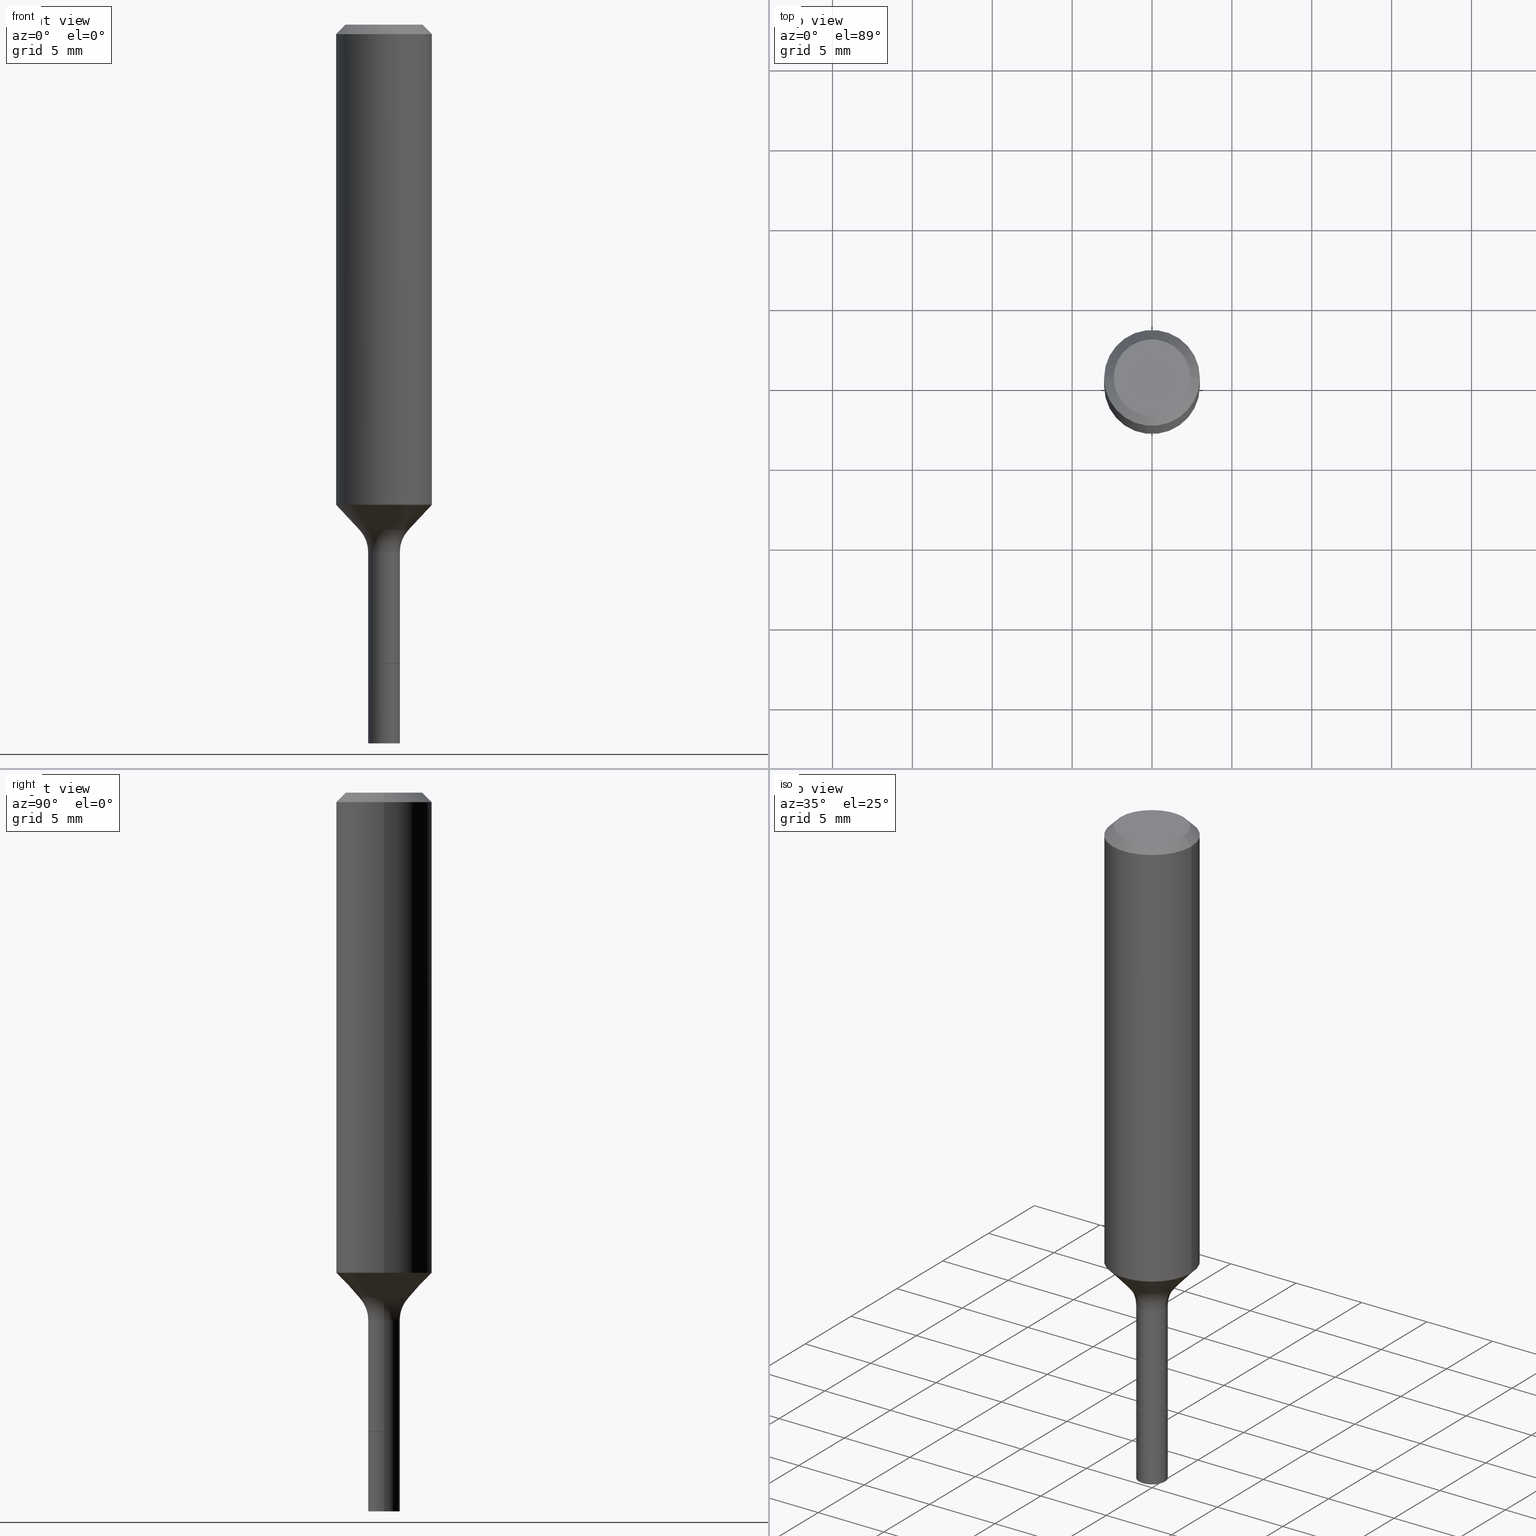
[diagram: canonical four-view strip — front | top / right | iso, engineering-drawing reading convention]
A machine part, canonical four-view strip (front | top / right | iso — engineering-drawing reading convention). The complete STEP part file that produces these views, byte-faithful:
ISO-10303-21;
HEADER;
FILE_DESCRIPTION (( 'STEP AP203' ),
    '1' );
FILE_NAME ('58481.STEP',
    '2025-04-01T15:23:17',
    ( '' ),
    ( '' ),
    'SwSTEP 2.0',
    'SolidWorks 2024',
    '' );
FILE_SCHEMA (( 'CONFIG_CONTROL_DESIGN' ));
ENDSEC;

DATA;
#1 = PERSON ( 'UNSPECIFIED', 'UNSPECIFIED', 'UNSPECIFIED', ('UNSPECIFIED'), ('UNSPECIFIED'), ('UNSPECIFIED') ) ;
#2 = DIRECTION ( 'NONE',  ( -2.445468806185136597E-29, 3.491481338843145583E-15, 1.000000000000000000 ) ) ;
#3 = ADVANCED_FACE ( 'NONE', ( #93 ), #16, .T. ) ;
#4 = AXIS2_PLACEMENT_3D ( 'NONE', #369, #331, #486 ) ;
#5 = CARTESIAN_POINT ( 'NONE',  ( 0.000000000000000000, 0.000000000000000000, 0.000000000000000000 ) ) ;
#6 = ORIENTED_EDGE ( 'NONE', *, *, #101, .T. ) ;
#7 = DIRECTION ( 'NONE',  ( -2.445468806185136597E-29, 3.491481338843145583E-15, 1.000000000000000000 ) ) ;
#8 = FACE_OUTER_BOUND ( 'NONE', #348, .T. ) ;
#9 = DIRECTION ( 'NONE',  ( -2.445468806185136597E-29, 3.491481338843145583E-15, 1.000000000000000000 ) ) ;
#10 = DIRECTION ( 'NONE',  ( 0.6819983600624995868, -2.208861293262486847E-15, 0.7313537016191693496 ) ) ;
#11 = CARTESIAN_POINT ( 'NONE',  ( 0.000000000000000000, 0.000000000000000000, 0.000000000000000000 ) ) ;
#12 = ADVANCED_FACE ( 'NONE', ( #417 ), #59, .T. ) ;
#13 = AXIS2_PLACEMENT_3D ( 'NONE', #129, #50, #367 ) ;
#14 = DIRECTION ( 'NONE',  ( 1.000000000000000000, -6.982962677686272233E-15, 0.000000000000000000 ) ) ;
#15 = CARTESIAN_POINT ( 'NONE',  ( 3.852102463502827373E-29, -5.499781404945724146E-15, -1.575200000000000156 ) ) ;
#16 = CONICAL_SURFACE ( 'NONE', #383, 0.03854999999999998705, 0.7853981633975591903 ) ;
#17 = DIRECTION ( 'NONE',  ( 1.000000000000000000, -6.982962677686272233E-15, 0.000000000000000000 ) ) ;
#18 = DIRECTION ( 'NONE',  ( 1.000000000000000000, -6.982962677686266711E-15, 0.000000000000000000 ) ) ;
#19 = CARTESIAN_POINT ( 'NONE',  ( -0.1180999999999999966, 7.422191030112725094E-16, -0.02362000000000013741 ) ) ;
#20 = DIRECTION ( 'NONE',  ( 1.000000000000000000, 0.000000000000000000, 0.000000000000000000 ) ) ;
#21 = AXIS2_PLACEMENT_3D ( 'NONE', #391, #307, #108 ) ;
#22 = CARTESIAN_POINT ( 'NONE',  ( 3.178375807398822119E-29, -4.537878296094436237E-15, -1.299700000000000077 ) ) ;
#23 = CYLINDRICAL_SURFACE ( 'NONE', #470, 0.03904999999999998056 ) ;
#24 = SHAPE_DEFINITION_REPRESENTATION ( #313, #414 ) ;
#25 = AXIS2_PLACEMENT_3D ( 'NONE', #82, #7, #184 ) ;
#26 = DIRECTION ( 'NONE',  ( -2.445468806185136597E-29, 3.491481338843145583E-15, 1.000000000000000000 ) ) ;
#27 = EDGE_CURVE ( 'NONE', #404, #362, #128, .T. ) ;
#28 = APPROVAL_DATE_TIME ( #233, #94 ) ;
#29 = ORIENTED_EDGE ( 'NONE', *, *, #141, .F. ) ;
#30 = DIRECTION ( 'NONE',  ( -6.982962677686266711E-15, -1.000000000000000000, 3.491481338843145583E-15 ) ) ;
#31 = ORIENTED_EDGE ( 'NONE', *, *, #60, .F. ) ;
#32 = ORIENTED_EDGE ( 'NONE', *, *, #215, .T. ) ;
#33 = EDGE_CURVE ( 'NONE', #362, #44, #45, .T. ) ;
#34 = AXIS2_PLACEMENT_3D ( 'NONE', #11, #462, #20 ) ;
#35 = DIRECTION ( 'NONE',  ( 7.105427357601001859E-15, 1.000000000000000000, -3.491481338843145583E-15 ) ) ;
#36 = CIRCLE ( 'NONE', #337, 0.1181000000000001493 ) ;
#37 = EDGE_LOOP ( 'NONE', ( #415, #317, #332, #206 ) ) ;
#38 = DIRECTION ( 'NONE',  ( -2.445468806185136597E-29, 3.491481338843145583E-15, 1.000000000000000000 ) ) ;
#39 = CONICAL_SURFACE ( 'NONE', #261, 0.1180999999999999966, 0.7853981633974463916 ) ;
#40 = VERTEX_POINT ( 'NONE', #482 ) ;
#41 = CARTESIAN_POINT ( 'NONE',  ( 0.1180999999999999966, -8.926936027602933910E-16, -0.02362000000000013741 ) ) ;
#42 = CARTESIAN_POINT ( 'NONE',  ( 3.772893820736570314E-46, -5.386692455541008845E-32, -1.542810037565835988E-17 ) ) ;
#43 = ADVANCED_FACE ( 'NONE', ( #382 ), #130, .T. ) ;
#44 = VERTEX_POINT ( 'NONE', #330 ) ;
#45 = LINE ( 'NONE', #323, #115 ) ;
#46 = DIRECTION ( 'NONE',  ( 2.438088387897960049E-29, -3.491481338843145188E-15, -1.000000000000000000 ) ) ;
#47 = ORIENTED_EDGE ( 'NONE', *, *, #237, .F. ) ;
#48 = AXIS2_PLACEMENT_3D ( 'NONE', #42, #255, #419 ) ;
#49 = CARTESIAN_POINT ( 'NONE',  ( -0.03905000000000011240, -5.566225378507452853E-15, -1.771700000000000053 ) ) ;
#50 = DIRECTION ( 'NONE',  ( 2.445468806185136597E-29, -3.491481338843145583E-15, -1.000000000000000000 ) ) ;
#51 = AXIS2_PLACEMENT_3D ( 'NONE', #152, #471, #273 ) ;
#52 = EDGE_CURVE ( 'NONE', #136, #40, #183, .T. ) ;
#53 = CALENDAR_DATE ( 2025, 1, 4 ) ;
#54 = DIRECTION ( 'NONE',  ( 1.000000000000000000, -6.982962677686267499E-15, 4.876176775795936353E-29 ) ) ;
#55 = AXIS2_PLACEMENT_3D ( 'NONE', #5, #446, #209 ) ;
#56 = APPLICATION_PROTOCOL_DEFINITION ( 'international standard', 'config_control_design', 1994, #345 ) ;
#57 = DIRECTION ( 'NONE',  ( 1.000000000000000000, -6.982962677686264344E-15, 0.000000000000000000 ) ) ;
#58 = DIRECTION ( 'NONE',  ( 1.000000000000000000, -6.982962677686258033E-15, 0.000000000000000000 ) ) ;
#59 = CONICAL_SURFACE ( 'NONE', #13, 0.1180999999999999966, 0.7853981633974463916 ) ;
#60 = EDGE_CURVE ( 'NONE', #362, #404, #493, .T. ) ;
#61 = DIRECTION ( 'NONE',  ( -2.445468806185136597E-29, 3.491481338843145583E-15, 1.000000000000000000 ) ) ;
#62 = DIRECTION ( 'NONE',  ( -0.7071067811865461294, 2.468850131082242072E-15, -0.7071067811865489050 ) ) ;
#63 = AXIS2_PLACEMENT_3D ( 'NONE', #223, #137, #14 ) ;
#64 = COORDINATED_UNIVERSAL_TIME_OFFSET ( 5, 0, .BEHIND. ) ;
#65 = TOROIDAL_SURFACE ( 'NONE', #433, 0.1190499999999999614, 0.07999999999999994615 ) ;
#66 = DIRECTION ( 'NONE',  ( -2.445468806185136597E-29, 3.491481338843145583E-15, 1.000000000000000000 ) ) ;
#67 = PERSON_AND_ORGANIZATION_ROLE ( 'design_supplier' ) ;
#68 = ADVANCED_FACE ( 'NONE', ( #515 ), #39, .T. ) ;
#69 = CARTESIAN_POINT ( 'NONE',  ( 0.000000000000000000, 0.000000000000000000, 0.000000000000000000 ) ) ;
#70 = CARTESIAN_POINT ( 'NONE',  ( 0.1190499999999999614, -5.369200002872985424E-15, -1.299700000000000077 ) ) ;
#71 = SECURITY_CLASSIFICATION_LEVEL ( 'unclassified' ) ;
#72 = ORIENTED_EDGE ( 'NONE', *, *, #182, .F. ) ;
#73 = AXIS2_PLACEMENT_3D ( 'NONE', #131, #38, #90 ) ;
#74 = VERTEX_POINT ( 'NONE', #49 ) ;
#75 = CC_DESIGN_PERSON_AND_ORGANIZATION_ASSIGNMENT ( #397, #67, ( #293 ) ) ;
#76 = EDGE_CURVE ( 'NONE', #514, #411, #426, .T. ) ;
#77 = EDGE_LOOP ( 'NONE', ( #358, #401, #32, #355 ) ) ;
#78 = CARTESIAN_POINT ( 'NONE',  ( 0.1180999999999999966, -9.071566814582237199E-16, -0.02362000000000013741 ) ) ;
#79 = ORIENTED_EDGE ( 'NONE', *, *, #394, .F. ) ;
#80 = DIRECTION ( 'NONE',  ( -1.000000000000000000, 7.105427357601005014E-15, 0.000000000000000000 ) ) ;
#81 = ORIENTED_EDGE ( 'NONE', *, *, #182, .T. ) ;
#82 = CARTESIAN_POINT ( 'NONE',  ( 3.044951350166641227E-29, -4.347383532312049754E-15, -1.245140131195000333 ) ) ;
#83 = PLANE ( 'NONE',  #213 ) ;
#84 = EDGE_CURVE ( 'NONE', #44, #247, #246, .T. ) ;
#85 = EDGE_LOOP ( 'NONE', ( #29, #218, #116, #175 ) ) ;
#86 = CYLINDRICAL_SURFACE ( 'NONE', #395, 0.03905000000000004995 ) ;
#87 = DIRECTION ( 'NONE',  ( -2.438088387897960049E-29, 3.491481338843145188E-15, 1.000000000000000000 ) ) ;
#88 = ORIENTED_EDGE ( 'NONE', *, *, #423, .F. ) ;
#89 = DIRECTION ( 'NONE',  ( -2.445468806185136597E-29, 3.491481338843145583E-15, 1.000000000000000000 ) ) ;
#90 = DIRECTION ( 'NONE',  ( 1.000000000000000000, -6.982962677686255667E-15, 0.000000000000000000 ) ) ;
#91 = APPROVAL_PERSON_ORGANIZATION ( #427, #466, #387 ) ;
#92 = CIRCLE ( 'NONE', #389, 0.03905000000000011240 ) ;
#93 = FACE_OUTER_BOUND ( 'NONE', #453, .T. ) ;
#94 = APPROVAL ( #107, 'UNSPECIFIED' ) ;
#95 = MECHANICAL_CONTEXT ( 'NONE', #211, 'mechanical' ) ;
#96 = DIRECTION ( 'NONE',  ( 1.000000000000000000, -6.982962677686255667E-15, 0.000000000000000000 ) ) ;
#97 = CARTESIAN_POINT ( 'NONE',  ( 0.03904999999999996668, -4.810562988658084561E-15, -1.299700000000000077 ) ) ;
#98 = CARTESIAN_POINT ( 'NONE',  ( 0.03905000000000011240, -6.458542180592050983E-15, -1.771700000000000053 ) ) ;
#99 = LENGTH_MEASURE_WITH_UNIT ( LENGTH_MEASURE( 0.02539999999999999897 ), #384 );
#100 = CARTESIAN_POINT ( 'NONE',  ( 2.894007928645242123E-29, -4.131876330531287042E-15, -1.183416415423353740 ) ) ;
#101 = EDGE_CURVE ( 'NONE', #132, #517, #248, .T. ) ;
#102 = DIRECTION ( 'NONE',  ( 1.000000000000000000, -6.982962677686269077E-15, 0.000000000000000000 ) ) ;
#103 = CARTESIAN_POINT ( 'NONE',  ( 3.178375807398822119E-29, -4.537878296094436237E-15, -1.299700000000000077 ) ) ;
#104 = APPLICATION_PROTOCOL_DEFINITION ( 'international standard', 'config_control_design', 1994, #211 ) ;
#105 = DIRECTION ( 'NONE',  ( -2.445468806185136597E-29, 3.491481338843145583E-15, 1.000000000000000000 ) ) ;
#106 = CLOSED_SHELL ( 'NONE', ( #473, #12, #43, #117, #295, #319, #289, #326, #176, #344, #68, #487, #437, #3 ) ) ;
#107 = APPROVAL_STATUS ( 'not_yet_approved' ) ;
#108 = DIRECTION ( 'NONE',  ( 1.000000000000000000, -6.982962677686265133E-15, 4.883557194083112340E-29 ) ) ;
#109 = ORGANIZATION ( 'UNSPECIFIED', 'UNSPECIFIED', '' ) ;
#110 = CALENDAR_DATE ( 2025, 1, 4 ) ;
#111 = ORIENTED_EDGE ( 'NONE', *, *, #84, .F. ) ;
#112 = AXIS2_PLACEMENT_3D ( 'NONE', #186, #297, #148 ) ;
#113 = FACE_OUTER_BOUND ( 'NONE', #173, .T. ) ;
#114 = EDGE_CURVE ( 'NONE', #411, #514, #163, .T. ) ;
#115 = VECTOR ( 'NONE', #207, 39.37007874015748854 ) ;
#116 = ORIENTED_EDGE ( 'NONE', *, *, #423, .T. ) ;
#117 = ADVANCED_FACE ( 'NONE', ( #458 ), #283, .T. ) ;
#118 = CIRCLE ( 'NONE', #145, 0.07999999999999993228 ) ;
#119 = ORIENTED_EDGE ( 'NONE', *, *, #153, .F. ) ;
#120 = EDGE_LOOP ( 'NONE', ( #123, #315 ) ) ;
#121 = DIRECTION ( 'NONE',  ( -2.445468806185136597E-29, 3.491481338843145583E-15, 1.000000000000000000 ) ) ;
#122 = VECTOR ( 'NONE', #158, 39.37007874015748143 ) ;
#123 = ORIENTED_EDGE ( 'NONE', *, *, #201, .F. ) ;
#124 = EDGE_CURVE ( 'NONE', #204, #294, #198, .T. ) ;
#125 = DIRECTION ( 'NONE',  ( -1.000000000000000000, 6.982962677686266711E-15, 0.000000000000000000 ) ) ;
#126 = ORIENTED_EDGE ( 'NONE', *, *, #338, .T. ) ;
#127 = FACE_OUTER_BOUND ( 'NONE', #240, .T. ) ;
#128 = CIRCLE ( 'NONE', #448, 0.06054170387046642343 ) ;
#129 = CARTESIAN_POINT ( 'NONE',  ( 5.776197320209326656E-31, -8.246878922347558061E-17, -0.02362000000000013741 ) ) ;
#130 = CYLINDRICAL_SURFACE ( 'NONE', #55, 0.1181000000000000660 ) ;
#131 = CARTESIAN_POINT ( 'NONE',  ( 3.853325197905920174E-29, -5.501527145615144861E-15, -1.575700000000000101 ) ) ;
#132 = VERTEX_POINT ( 'NONE', #98 ) ;
#133 = LOCAL_TIME ( 11, 23, 17.00000000000000000, #270 ) ;
#134 = PRODUCT_DEFINITION ( 'UNKNOWN', '', #293, #378 ) ;
#135 = CIRCLE ( 'NONE', #205, 0.03905000000000000138 ) ;
#136 = VERTEX_POINT ( 'NONE', #449 ) ;
#137 = DIRECTION ( 'NONE',  ( -2.445468806185136597E-29, 3.491481338843145583E-15, 1.000000000000000000 ) ) ;
#138 = DATE_AND_TIME ( #180, #386 ) ;
#139 = PLANE ( 'NONE',  #112 ) ;
#140 = VECTOR ( 'NONE', #496, 39.37007874015748143 ) ;
#141 = EDGE_CURVE ( 'NONE', #44, #514, #259, .T. ) ;
#142 = PERSON_AND_ORGANIZATION_ROLE ( 'design_owner' ) ;
#143 = DIRECTION ( 'NONE',  ( 1.000000000000000000, -6.982962677686266711E-15, 4.876176775795936353E-29 ) ) ;
#144 = DIRECTION ( 'NONE',  ( -2.445468806185136597E-29, 3.491481338843145583E-15, 1.000000000000000000 ) ) ;
#145 = AXIS2_PLACEMENT_3D ( 'NONE', #236, #35, #80 ) ;
#146 = CARTESIAN_POINT ( 'NONE',  ( 0.03904999999999998056, -2.726846925636486196E-16, 1.904147030948312151E-30 ) ) ;
#147 = APPROVAL_ROLE ( '' ) ;
#148 = DIRECTION ( 'NONE',  ( -1.000000000000000000, 6.982962677686265922E-15, -4.876176775795935793E-29 ) ) ;
#149 = CIRCLE ( 'NONE', #491, 0.03904999999999996668 ) ;
#150 = CC_DESIGN_PERSON_AND_ORGANIZATION_ASSIGNMENT ( #356, #507, ( #452 ) ) ;
#151 = LINE ( 'NONE', #504, #140 ) ;
#152 = CARTESIAN_POINT ( 'NONE',  ( 3.853325197905920174E-29, -5.501527145615144861E-15, -1.575700000000000101 ) ) ;
#153 = EDGE_CURVE ( 'NONE', #40, #411, #409, .T. ) ;
#154 = PERSON_AND_ORGANIZATION_ROLE ( 'creator' ) ;
#155 = CARTESIAN_POINT ( 'NONE',  ( -0.03905000000000000138, -4.741362912205761257E-15, -1.575200000000000156 ) ) ;
#156 = DATE_AND_TIME ( #390, #431 ) ;
#157 = AXIS2_PLACEMENT_3D ( 'NONE', #288, #89, #363 ) ;
#158 = DIRECTION ( 'NONE',  ( -0.7071067811866259545, 7.493145998870638150E-15, 0.7071067811864690800 ) ) ;
#159 = ORIENTED_EDGE ( 'NONE', *, *, #201, .T. ) ;
#160 = ADVANCED_FACE ( 'NONE', ( #127 ), #86, .T. ) ;
#161 = LOCAL_TIME ( 11, 23, 17.00000000000000000, #467 ) ;
#162 = EDGE_LOOP ( 'NONE', ( #351, #126 ) ) ;
#163 = CIRCLE ( 'NONE', #322, 0.1180999999999999966 ) ;
#164 = VECTOR ( 'NONE', #499, 39.37007874015748143 ) ;
#165 = ORIENTED_EDGE ( 'NONE', *, *, #281, .F. ) ;
#166 = EDGE_CURVE ( 'NONE', #136, #514, #396, .T. ) ;
#167 = VERTEX_POINT ( 'NONE', #347 ) ;
#168 = PRODUCT_RELATED_PRODUCT_CATEGORY ( 'detail', '', ( #436 ) ) ;
#169 = DIRECTION ( 'NONE',  ( -2.445468806185136877E-29, 3.491481338843145188E-15, 1.000000000000000000 ) ) ;
#170 = AXIS2_PLACEMENT_3D ( 'NONE', #435, #505, #189 ) ;
#171 = ORIENTED_EDGE ( 'NONE', *, *, #359, .T. ) ;
#172 = CARTESIAN_POINT ( 'NONE',  ( 5.776197320209326656E-31, -8.246878922347558061E-17, -0.02362000000000013741 ) ) ;
#173 = EDGE_LOOP ( 'NONE', ( #47, #360, #454, #447 ) ) ;
#174 = CARTESIAN_POINT ( 'NONE',  ( 4.332637083918206427E-29, -6.185857488028401081E-15, -1.771700000000000053 ) ) ;
#175 = ORIENTED_EDGE ( 'NONE', *, *, #76, .F. ) ;
#176 = ADVANCED_FACE ( 'NONE', ( #193 ), #353, .T. ) ;
#177 = CARTESIAN_POINT ( 'NONE',  ( 3.044951350166641227E-29, -4.347383532312049754E-15, -1.245140131195000333 ) ) ;
#178 = CC_DESIGN_APPROVAL ( #94, ( #293 ) ) ;
#179 = VECTOR ( 'NONE', #349, 39.37007874015748143 ) ;
#180 = CALENDAR_DATE ( 2025, 1, 4 ) ;
#181 = CYLINDRICAL_SURFACE ( 'NONE', #361, 0.1181000000000000660 ) ;
#182 = EDGE_CURVE ( 'NONE', #325, #517, #234, .T. ) ;
#183 = CIRCLE ( 'NONE', #157, 0.09447999999999998066 ) ;
#184 = DIRECTION ( 'NONE',  ( 1.000000000000000000, -6.982962677686272233E-15, 0.000000000000000000 ) ) ;
#185 =( NAMED_UNIT ( * ) SI_UNIT ( $, .STERADIAN. ) SOLID_ANGLE_UNIT ( ) );
#186 = CARTESIAN_POINT ( 'NONE',  ( 3.853325197905920174E-29, -5.501527145615144861E-15, -1.575700000000000101 ) ) ;
#187 = DIRECTION ( 'NONE',  ( -2.445468806185136597E-29, 3.491481338843145583E-15, 1.000000000000000000 ) ) ;
#188 = CIRCLE ( 'NONE', #336, 0.03854999999999998705 ) ;
#189 = DIRECTION ( 'NONE',  ( 1.000000000000000000, -6.982962677686272233E-15, 0.000000000000000000 ) ) ;
#190 = AXIS2_PLACEMENT_3D ( 'NONE', #195, #342, #258 ) ;
#191 = VERTEX_POINT ( 'NONE', #155 ) ;
#192 = CARTESIAN_POINT ( 'NONE',  ( 0.1181000000000001493, -4.956564222766036883E-15, -1.183416415423353740 ) ) ;
#193 = FACE_OUTER_BOUND ( 'NONE', #513, .T. ) ;
#194 = CALENDAR_DATE ( 2025, 1, 4 ) ;
#195 = CARTESIAN_POINT ( 'NONE',  ( 7.545787641473140628E-46, -1.077338491108201769E-31, -3.085620075131671975E-17 ) ) ;
#196 = CC_DESIGN_PERSON_AND_ORGANIZATION_ASSIGNMENT ( #199, #154, ( #293 ) ) ;
#197 = CC_DESIGN_DATE_AND_TIME_ASSIGNMENT ( #354, #306, ( #134 ) ) ;
#198 = CIRCLE ( 'NONE', #298, 0.03904999999999996668 ) ;
#199 = PERSON_AND_ORGANIZATION ( #1, #109 ) ;
#200 = FACE_OUTER_BOUND ( 'NONE', #37, .T. ) ;
#201 = EDGE_CURVE ( 'NONE', #202, #408, #503, .T. ) ;
#202 = VERTEX_POINT ( 'NONE', #275 ) ;
#203 = CC_DESIGN_SECURITY_CLASSIFICATION ( #452, ( #293 ) ) ;
#204 = VERTEX_POINT ( 'NONE', #429 ) ;
#205 = AXIS2_PLACEMENT_3D ( 'NONE', #15, #61, #18 ) ;
#206 = ORIENTED_EDGE ( 'NONE', *, *, #101, .F. ) ;
#207 = DIRECTION ( 'NONE',  ( -0.6819983600624995868, 7.399397606724291309E-15, 0.7313537016191693496 ) ) ;
#208 = ORIENTED_EDGE ( 'NONE', *, *, #508, .T. ) ;
#209 = DIRECTION ( 'NONE',  ( 1.000000000000000000, -6.982962677686266711E-15, 4.876176775795936353E-29 ) ) ;
#210 = ORIENTED_EDGE ( 'NONE', *, *, #249, .F. ) ;
#211 = APPLICATION_CONTEXT ( 'configuration controlled 3d designs of mechanical parts and assemblies' ) ;
#212 = DIRECTION ( 'NONE',  ( -1.000000000000000000, 6.982962677686265922E-15, -4.876176775795935793E-29 ) ) ;
#213 = AXIS2_PLACEMENT_3D ( 'NONE', #174, #46, #212 ) ;
#214 = ORIENTED_EDGE ( 'NONE', *, *, #456, .F. ) ;
#215 = EDGE_CURVE ( 'NONE', #404, #294, #480, .T. ) ;
#216 = CARTESIAN_POINT ( 'NONE',  ( 3.044951350166641227E-29, -4.347383532312049754E-15, -1.245140131195000333 ) ) ;
#217 = CARTESIAN_POINT ( 'NONE',  ( 0.1181000000000000660, -8.246878922347485584E-16, 5.758764772215003944E-30 ) ) ;
#218 = ORIENTED_EDGE ( 'NONE', *, *, #84, .T. ) ;
#219 = LINE ( 'NONE', #376, #278 ) ;
#220 = DIRECTION ( 'NONE',  ( -2.445468806185136597E-29, 3.491481338843145583E-15, 1.000000000000000000 ) ) ;
#221 = EDGE_CURVE ( 'NONE', #408, #191, #474, .T. ) ;
#222 = CARTESIAN_POINT ( 'NONE',  ( 0.03854999999999998705, -5.770720356839950178E-15, -1.575700000000000101 ) ) ;
#223 = CARTESIAN_POINT ( 'NONE',  ( 4.332637083918206427E-29, -6.185857488028401081E-15, -1.771700000000000053 ) ) ;
#224 = CARTESIAN_POINT ( 'NONE',  ( 3.853325197905920174E-29, -5.501527145615144861E-15, -1.575700000000000101 ) ) ;
#225 = VECTOR ( 'NONE', #299, 39.37007874015748143 ) ;
#226 = APPROVAL_STATUS ( 'not_yet_approved' ) ;
#227 = DIRECTION ( 'NONE',  ( 1.000000000000000000, -6.982962677686269077E-15, 0.000000000000000000 ) ) ;
#228 = CC_DESIGN_DATE_AND_TIME_ASSIGNMENT ( #232, #506, ( #452 ) ) ;
#229 = TOROIDAL_SURFACE ( 'NONE', #21, 0.1190499999999999614, 0.07999999999999994615 ) ;
#230 = ADVANCED_FACE ( 'NONE', ( #200 ), #357, .T. ) ;
#231 = CYLINDRICAL_SURFACE ( 'NONE', #318, 0.03904999999999998056 ) ;
#232 = DATE_AND_TIME ( #194, #133 ) ;
#233 = DATE_AND_TIME ( #110, #161 ) ;
#234 = CIRCLE ( 'NONE', #516, 0.03904999999999998750 ) ;
#235 = ORIENTED_EDGE ( 'NONE', *, *, #141, .T. ) ;
#236 = CARTESIAN_POINT ( 'NONE',  ( -0.1190499999999999614, -3.691977169172037043E-15, -1.299700000000000077 ) ) ;
#237 = EDGE_CURVE ( 'NONE', #191, #204, #151, .T. ) ;
#238 = EDGE_LOOP ( 'NONE', ( #321, #235, #287, #88 ) ) ;
#239 = UNCERTAINTY_MEASURE_WITH_UNIT (LENGTH_MEASURE( 1.000000000000000082E-05 ), #303, 'distance_accuracy_value', 'NONE');
#240 = EDGE_LOOP ( 'NONE', ( #210, #208, #6, #72 ) ) ;
#241 = ORIENTED_EDGE ( 'NONE', *, *, #407, .F. ) ;
#242 = EDGE_CURVE ( 'NONE', #294, #204, #149, .T. ) ;
#243 = PLANE ( 'NONE',  #370 ) ;
#244 = ORIENTED_EDGE ( 'NONE', *, *, #508, .F. ) ;
#245 = DIRECTION ( 'NONE',  ( -2.445468806185136597E-29, 3.491481338843145583E-15, 1.000000000000000000 ) ) ;
#246 = CIRCLE ( 'NONE', #312, 0.1181000000000001493 ) ;
#247 = VERTEX_POINT ( 'NONE', #192 ) ;
#248 = LINE ( 'NONE', #302, #225 ) ;
#249 = EDGE_CURVE ( 'NONE', #74, #325, #300, .T. ) ;
#250 = ORIENTED_EDGE ( 'NONE', *, *, #27, .T. ) ;
#251 = APPROVAL_PERSON_ORGANIZATION ( #350, #290, #147 ) ;
#252 = DIRECTION ( 'NONE',  ( 2.445468806185136597E-29, -3.491481338843145583E-15, -1.000000000000000000 ) ) ;
#253 = AXIS2_PLACEMENT_3D ( 'NONE', #224, #187, #227 ) ;
#254 = CARTESIAN_POINT ( 'NONE',  ( 3.853325197905920174E-29, -5.501527145615144861E-15, -1.575700000000000101 ) ) ;
#255 = DIRECTION ( 'NONE',  ( 2.438088387897960049E-29, -3.491481338843145188E-15, -1.000000000000000000 ) ) ;
#256 = VECTOR ( 'NONE', #368, 39.37007874015748143 ) ;
#257 = PERSON_AND_ORGANIZATION ( #1, #109 ) ;
#258 = DIRECTION ( 'NONE',  ( 1.000000000000000000, -6.982962677686267499E-15, 4.875432709231658792E-29 ) ) ;
#259 = LINE ( 'NONE', #424, #256 ) ;
#260 = FACE_OUTER_BOUND ( 'NONE', #371, .T. ) ;
#261 = AXIS2_PLACEMENT_3D ( 'NONE', #416, #252, #125 ) ;
#262 = MANIFOLD_SOLID_BREP ( 'Body-Move/Copy2[2]', #106 ) ;
#263 = PERSON_AND_ORGANIZATION ( #1, #109 ) ;
#264 = CARTESIAN_POINT ( 'NONE',  ( -0.06054170387046639568, -3.917208853355059168E-15, -1.245140131195000333 ) ) ;
#265 = CARTESIAN_POINT ( 'NONE',  ( 3.853325197905920174E-29, -5.501527145615144861E-15, -1.575700000000000101 ) ) ;
#266 = PERSON_AND_ORGANIZATION ( #1, #109 ) ;
#267 = ORIENTED_EDGE ( 'NONE', *, *, #114, .T. ) ;
#268 = CARTESIAN_POINT ( 'NONE',  ( 3.178375807398822119E-29, -4.537878296094436237E-15, -1.299700000000000077 ) ) ;
#269 =( GEOMETRIC_REPRESENTATION_CONTEXT ( 3 ) GLOBAL_UNCERTAINTY_ASSIGNED_CONTEXT ( ( #239 ) ) GLOBAL_UNIT_ASSIGNED_CONTEXT ( ( #303, #498, #185 ) ) REPRESENTATION_CONTEXT ( 'NONE', 'WORKASPACE' ) );
#270 = COORDINATED_UNIVERSAL_TIME_OFFSET ( 5, 0, .BEHIND. ) ;
#271 = VECTOR ( 'NONE', #428, 39.37007874015748143 ) ;
#272 = DIRECTION ( 'NONE',  ( -2.445468806185136597E-29, 3.491481338843145583E-15, 1.000000000000000000 ) ) ;
#273 = DIRECTION ( 'NONE',  ( 1.000000000000000000, -6.982962677686255667E-15, 0.000000000000000000 ) ) ;
#274 = EDGE_LOOP ( 'NONE', ( #335, #398, #267, #310 ) ) ;
#275 = CARTESIAN_POINT ( 'NONE',  ( 0.03854999999999998705, -5.770720356839950178E-15, -1.575700000000000101 ) ) ;
#276 = APPROVAL_STATUS ( 'not_yet_approved' ) ;
#277 = ORIENTED_EDGE ( 'NONE', *, *, #33, .F. ) ;
#278 = VECTOR ( 'NONE', #10, 39.37007874015748854 ) ;
#279 = ORIENTED_EDGE ( 'NONE', *, *, #377, .F. ) ;
#280 = CARTESIAN_POINT ( 'NONE',  ( 4.332637083918206427E-29, -6.185857488028401081E-15, -1.771700000000000053 ) ) ;
#281 = EDGE_CURVE ( 'NONE', #202, #167, #501, .T. ) ;
#282 = EDGE_LOOP ( 'NONE', ( #119, #285, #488, #490 ) ) ;
#283 = CONICAL_SURFACE ( 'NONE', #25, 0.06054170387046642343, 0.7504915783575633048 ) ;
#284 = CARTESIAN_POINT ( 'NONE',  ( 3.853325197905920174E-29, -5.501527145615144861E-15, -1.575700000000000101 ) ) ;
#285 = ORIENTED_EDGE ( 'NONE', *, *, #52, .F. ) ;
#286 = DIRECTION ( 'NONE',  ( 1.000000000000000000, -6.982962677686266711E-15, 0.000000000000000000 ) ) ;
#287 = ORIENTED_EDGE ( 'NONE', *, *, #114, .F. ) ;
#288 = CARTESIAN_POINT ( 'NONE',  ( 7.545787641473140628E-46, -1.077338491108201769E-31, -3.085620075131671975E-17 ) ) ;
#289 = ADVANCED_FACE ( 'NONE', ( #113 ), #23, .T. ) ;
#290 = APPROVAL ( #276, 'UNSPECIFIED' ) ;
#291 = ORIENTED_EDGE ( 'NONE', *, *, #215, .F. ) ;
#292 = ORIENTED_EDGE ( 'NONE', *, *, #281, .T. ) ;
#293 = PRODUCT_DEFINITION_FORMATION_WITH_SPECIFIED_SOURCE ( 'ANY', '', #436, .NOT_KNOWN. ) ;
#294 = VERTEX_POINT ( 'NONE', #97 ) ;
#295 = ADVANCED_FACE ( 'NONE', ( #385 ), #65, .F. ) ;
#296 = APPROVAL_DATE_TIME ( #138, #466 ) ;
#297 = DIRECTION ( 'NONE',  ( 2.438088387897960049E-29, -3.491481338843145188E-15, -1.000000000000000000 ) ) ;
#298 = AXIS2_PLACEMENT_3D ( 'NONE', #103, #245, #340 ) ;
#299 = DIRECTION ( 'NONE',  ( -2.445468806185136877E-29, 3.491481338843145188E-15, 1.000000000000000000 ) ) ;
#300 = LINE ( 'NONE', #463, #179 ) ;
#301 = CONICAL_SURFACE ( 'NONE', #73, 0.03854999999999998705, 0.7853981633975591903 ) ;
#302 = CARTESIAN_POINT ( 'NONE',  ( 0.03905000000000004995, -5.774211838178793974E-15, -1.575700000000000101 ) ) ;
#303 =( CONVERSION_BASED_UNIT ( 'INCH', #99 ) LENGTH_UNIT ( ) NAMED_UNIT ( #309 ) );
#304 = DIRECTION ( 'NONE',  ( 1.000000000000000000, -6.982962677686258033E-15, 0.000000000000000000 ) ) ;
#305 = ADVANCED_FACE ( 'NONE', ( #260 ), #139, .F. ) ;
#306 = DATE_TIME_ROLE ( 'creation_date' ) ;
#307 = DIRECTION ( 'NONE',  ( -2.445468806185136597E-29, 3.491481338843145583E-15, 1.000000000000000000 ) ) ;
#308 = CARTESIAN_POINT ( 'NONE',  ( 0.000000000000000000, 0.000000000000000000, 0.000000000000000000 ) ) ;
#309 = DIMENSIONAL_EXPONENTS ( 1.000000000000000000, 0.000000000000000000, 0.000000000000000000, 0.000000000000000000, 0.000000000000000000, 0.000000000000000000, 0.000000000000000000 ) ;
#310 = ORIENTED_EDGE ( 'NONE', *, *, #166, .F. ) ;
#311 = CARTESIAN_POINT ( 'NONE',  ( -0.03854999999999998705, -5.224963693805516018E-15, -1.575700000000000101 ) ) ;
#312 = AXIS2_PLACEMENT_3D ( 'NONE', #497, #518, #406 ) ;
#313 = PRODUCT_DEFINITION_SHAPE ( 'NONE', 'NONE',  #134 ) ;
#314 = CARTESIAN_POINT ( 'NONE',  ( -0.03854999999999998705, -5.227612920979627219E-15, -1.575700000000000101 ) ) ;
#315 = ORIENTED_EDGE ( 'NONE', *, *, #502, .F. ) ;
#316 = LOCAL_TIME ( 11, 23, 17.00000000000000000, #379 ) ;
#317 = ORIENTED_EDGE ( 'NONE', *, *, #249, .T. ) ;
#318 = AXIS2_PLACEMENT_3D ( 'NONE', #69, #457, #54 ) ;
#319 = ADVANCED_FACE ( 'NONE', ( #380 ), #231, .T. ) ;
#320 = ORIENTED_EDGE ( 'NONE', *, *, #242, .F. ) ;
#321 = ORIENTED_EDGE ( 'NONE', *, *, #394, .T. ) ;
#322 = AXIS2_PLACEMENT_3D ( 'NONE', #172, #461, #286 ) ;
#323 = CARTESIAN_POINT ( 'NONE',  ( -0.06054170387046642343, -3.917208853355059168E-15, -1.245140131195000333 ) ) ;
#324 = FACE_OUTER_BOUND ( 'NONE', #441, .T. ) ;
#325 = VERTEX_POINT ( 'NONE', #432 ) ;
#326 = ADVANCED_FACE ( 'NONE', ( #465 ), #229, .F. ) ;
#327 = DIRECTION ( 'NONE',  ( 0.7071067811865461294, -7.319954787623251312E-15, -0.7071067811865489050 ) ) ;
#328 = CARTESIAN_POINT ( 'NONE',  ( 3.853325197905920174E-29, -5.501527145615144861E-15, -1.575700000000000101 ) ) ;
#329 = DIRECTION ( 'NONE',  ( 1.000000000000000000, -6.982962677686255667E-15, 0.000000000000000000 ) ) ;
#330 = CARTESIAN_POINT ( 'NONE',  ( -0.1181000000000001493, -3.292725359598607662E-15, -1.183416415423353740 ) ) ;
#331 = DIRECTION ( 'NONE',  ( -2.445468806185136597E-29, 3.491481338843145583E-15, 1.000000000000000000 ) ) ;
#332 = ORIENTED_EDGE ( 'NONE', *, *, #400, .F. ) ;
#333 = CLOSED_SHELL ( 'NONE', ( #230, #451, #160, #305 ) ) ;
#334 = FACE_OUTER_BOUND ( 'NONE', #162, .T. ) ;
#335 = ORIENTED_EDGE ( 'NONE', *, *, #338, .F. ) ;
#336 = AXIS2_PLACEMENT_3D ( 'NONE', #284, #220, #96 ) ;
#337 = AXIS2_PLACEMENT_3D ( 'NONE', #100, #425, #57 ) ;
#338 = EDGE_CURVE ( 'NONE', #40, #136, #405, .T. ) ;
#339 = DIRECTION ( 'NONE',  ( 1.000000000000000000, -6.982962677686265133E-15, 4.883557194083112340E-29 ) ) ;
#340 = DIRECTION ( 'NONE',  ( 1.000000000000000000, -6.982962677686273021E-15, 0.000000000000000000 ) ) ;
#341 = CARTESIAN_POINT ( 'NONE',  ( -0.1180999999999999966, -1.268021588944702067E-15, -0.02362000000000013741 ) ) ;
#342 = DIRECTION ( 'NONE',  ( -2.445468806185136597E-29, 3.491481338843145583E-15, 1.000000000000000000 ) ) ;
#343 = DIRECTION ( 'NONE',  ( 1.000000000000000000, -6.982962677686266711E-15, 0.000000000000000000 ) ) ;
#344 = ADVANCED_FACE ( 'NONE', ( #393 ), #181, .T. ) ;
#345 = APPLICATION_CONTEXT ( 'configuration controlled 3d designs of mechanical parts and assemblies' ) ;
#346 = DIRECTION ( 'NONE',  ( 1.000000000000000000, -6.982962677686273021E-15, 0.000000000000000000 ) ) ;
#347 = CARTESIAN_POINT ( 'NONE',  ( 0.03905000000000000138, -5.772466097509372470E-15, -1.575200000000000156 ) ) ;
#348 = EDGE_LOOP ( 'NONE', ( #159, #402, #478, #165 ) ) ;
#349 = DIRECTION ( 'NONE',  ( -2.445468806185136877E-29, 3.491481338843145188E-15, 1.000000000000000000 ) ) ;
#350 = PERSON_AND_ORGANIZATION ( #1, #109 ) ;
#351 = ORIENTED_EDGE ( 'NONE', *, *, #52, .T. ) ;
#352 = LINE ( 'NONE', #146, #271 ) ;
#353 = CONICAL_SURFACE ( 'NONE', #170, 0.06054170387046642343, 0.7504915783575633048 ) ;
#354 = DATE_AND_TIME ( #53, #316 ) ;
#355 = ORIENTED_EDGE ( 'NONE', *, *, #242, .T. ) ;
#356 = PERSON_AND_ORGANIZATION ( #1, #109 ) ;
#357 = CYLINDRICAL_SURFACE ( 'NONE', #375, 0.03905000000000004995 ) ;
#358 = ORIENTED_EDGE ( 'NONE', *, *, #418, .F. ) ;
#359 = EDGE_CURVE ( 'NONE', #167, #191, #135, .T. ) ;
#360 = ORIENTED_EDGE ( 'NONE', *, *, #456, .T. ) ;
#361 = AXIS2_PLACEMENT_3D ( 'NONE', #459, #422, #143 ) ;
#362 = VERTEX_POINT ( 'NONE', #264 ) ;
#363 = DIRECTION ( 'NONE',  ( 1.000000000000000000, -6.982962677686267499E-15, 4.875432709231658792E-29 ) ) ;
#364 = CC_DESIGN_PERSON_AND_ORGANIZATION_ASSIGNMENT ( #257, #421, ( #134 ) ) ;
#365 = ORIENTED_EDGE ( 'NONE', *, *, #60, .T. ) ;
#366 = AXIS2_PLACEMENT_3D ( 'NONE', #70, #30, #460 ) ;
#367 = DIRECTION ( 'NONE',  ( -1.000000000000000000, 6.982962677686266711E-15, 0.000000000000000000 ) ) ;
#368 = DIRECTION ( 'NONE',  ( -2.445468806185136877E-29, 3.491481338843145188E-15, 1.000000000000000000 ) ) ;
#369 = CARTESIAN_POINT ( 'NONE',  ( 3.852102463502827373E-29, -5.499781404945724146E-15, -1.575200000000000156 ) ) ;
#370 = AXIS2_PLACEMENT_3D ( 'NONE', #328, #87, #410 ) ;
#371 = EDGE_LOOP ( 'NONE', ( #479, #81 ) ) ;
#372 = CARTESIAN_POINT ( 'NONE',  ( 5.776197320209326656E-31, -8.246878922347558061E-17, -0.02362000000000013741 ) ) ;
#373 = LINE ( 'NONE', #217, #438 ) ;
#374 = ORIENTED_EDGE ( 'NONE', *, *, #33, .T. ) ;
#375 = AXIS2_PLACEMENT_3D ( 'NONE', #509, #105, #304 ) ;
#376 = CARTESIAN_POINT ( 'NONE',  ( 0.06054170387046642343, -4.770143990883050812E-15, -1.245140131195000333 ) ) ;
#377 = EDGE_CURVE ( 'NONE', #167, #294, #352, .T. ) ;
#378 = DESIGN_CONTEXT ( 'detailed design', #345, 'design' ) ;
#379 = COORDINATED_UNIVERSAL_TIME_OFFSET ( 5, 0, .BEHIND. ) ;
#380 = FACE_OUTER_BOUND ( 'NONE', #483, .T. ) ;
#381 = CC_DESIGN_PERSON_AND_ORGANIZATION_ASSIGNMENT ( #263, #142, ( #436 ) ) ;
#382 = FACE_OUTER_BOUND ( 'NONE', #238, .T. ) ;
#383 = AXIS2_PLACEMENT_3D ( 'NONE', #254, #9, #329 ) ;
#384 =( LENGTH_UNIT ( ) NAMED_UNIT ( * ) SI_UNIT ( $, .METRE. ) );
#385 = FACE_OUTER_BOUND ( 'NONE', #475, .T. ) ;
#386 = LOCAL_TIME ( 11, 23, 17.00000000000000000, #420 ) ;
#387 = APPROVAL_ROLE ( '' ) ;
#388 = CARTESIAN_POINT ( 'NONE',  ( 0.06054170387046639568, -4.770143990883050023E-15, -1.245140131195000333 ) ) ;
#389 = AXIS2_PLACEMENT_3D ( 'NONE', #280, #121, #442 ) ;
#390 = CALENDAR_DATE ( 2025, 1, 4 ) ;
#391 = CARTESIAN_POINT ( 'NONE',  ( 3.178375807398822119E-29, -4.537878296094436237E-15, -1.299700000000000077 ) ) ;
#392 = APPROVAL_ROLE ( '' ) ;
#393 = FACE_OUTER_BOUND ( 'NONE', #85, .T. ) ;
#394 = EDGE_CURVE ( 'NONE', #247, #44, #36, .T. ) ;
#395 = AXIS2_PLACEMENT_3D ( 'NONE', #412, #399, #58 ) ;
#396 = LINE ( 'NONE', #19, #443 ) ;
#397 = PERSON_AND_ORGANIZATION ( #1, #109 ) ;
#398 = ORIENTED_EDGE ( 'NONE', *, *, #153, .T. ) ;
#399 = DIRECTION ( 'NONE',  ( -2.445468806185136597E-29, 3.491481338843145583E-15, 1.000000000000000000 ) ) ;
#400 = EDGE_CURVE ( 'NONE', #517, #325, #477, .T. ) ;
#401 = ORIENTED_EDGE ( 'NONE', *, *, #27, .F. ) ;
#402 = ORIENTED_EDGE ( 'NONE', *, *, #221, .T. ) ;
#403 = CIRCLE ( 'NONE', #63, 0.03905000000000011240 ) ;
#404 = VERTEX_POINT ( 'NONE', #388 ) ;
#405 = CIRCLE ( 'NONE', #190, 0.09447999999999998066 ) ;
#406 = DIRECTION ( 'NONE',  ( 1.000000000000000000, -6.982962677686264344E-15, 0.000000000000000000 ) ) ;
#407 = EDGE_CURVE ( 'NONE', #132, #74, #92, .T. ) ;
#408 = VERTEX_POINT ( 'NONE', #311 ) ;
#409 = LINE ( 'NONE', #41, #455 ) ;
#410 = DIRECTION ( 'NONE',  ( 1.000000000000000000, -6.982962677686265922E-15, 4.876176775795935793E-29 ) ) ;
#411 = VERTEX_POINT ( 'NONE', #78 ) ;
#412 = CARTESIAN_POINT ( 'NONE',  ( 3.853325197905920174E-29, -5.501527145615144861E-15, -1.575700000000000101 ) ) ;
#413 = FACE_OUTER_BOUND ( 'NONE', #120, .T. ) ;
#414 = ADVANCED_BREP_SHAPE_REPRESENTATION ( '58481', ( #440, #262, #34 ), #269 ) ;
#415 = ORIENTED_EDGE ( 'NONE', *, *, #407, .T. ) ;
#416 = CARTESIAN_POINT ( 'NONE',  ( 5.776197320209326656E-31, -8.246878922347558061E-17, -0.02362000000000013741 ) ) ;
#417 = FACE_OUTER_BOUND ( 'NONE', #274, .T. ) ;
#418 = EDGE_CURVE ( 'NONE', #362, #204, #118, .T. ) ;
#419 = DIRECTION ( 'NONE',  ( -1.000000000000000000, 6.982962677686265922E-15, -4.876176775795935793E-29 ) ) ;
#420 = COORDINATED_UNIVERSAL_TIME_OFFSET ( 5, 0, .BEHIND. ) ;
#421 = PERSON_AND_ORGANIZATION_ROLE ( 'creator' ) ;
#422 = DIRECTION ( 'NONE',  ( -2.445468806185136597E-29, 3.491481338843145583E-15, 1.000000000000000000 ) ) ;
#423 = EDGE_CURVE ( 'NONE', #247, #411, #373, .T. ) ;
#424 = CARTESIAN_POINT ( 'NONE',  ( -0.1181000000000000660, 8.391509709326787887E-16, -5.809262341591047287E-30 ) ) ;
#425 = DIRECTION ( 'NONE',  ( -2.445468806185136597E-29, 3.491481338843145583E-15, 1.000000000000000000 ) ) ;
#426 = CIRCLE ( 'NONE', #472, 0.1180999999999999966 ) ;
#427 = PERSON_AND_ORGANIZATION ( #1, #109 ) ;
#428 = DIRECTION ( 'NONE',  ( -2.445468806185136877E-29, 3.491481338843145188E-15, 1.000000000000000000 ) ) ;
#429 = CARTESIAN_POINT ( 'NONE',  ( -0.03904999999999996668, -4.741362912205761257E-15, -1.299700000000000077 ) ) ;
#430 = APPROVAL_DATE_TIME ( #156, #290 ) ;
#431 = LOCAL_TIME ( 11, 23, 17.00000000000000000, #64 ) ;
#432 = CARTESIAN_POINT ( 'NONE',  ( -0.03904999999999998750, -5.566225378507453642E-15, -1.575700000000000101 ) ) ;
#433 = AXIS2_PLACEMENT_3D ( 'NONE', #268, #66, #339 ) ;
#434 = DIRECTION ( 'NONE',  ( 1.000000000000000000, -6.982962677686267499E-15, 4.876176775795936353E-29 ) ) ;
#435 = CARTESIAN_POINT ( 'NONE',  ( 3.044951350166641227E-29, -4.347383532312049754E-15, -1.245140131195000333 ) ) ;
#436 = PRODUCT ( '58481', '58481', '', ( #95 ) ) ;
#437 = ADVANCED_FACE ( 'NONE', ( #413 ), #243, .F. ) ;
#438 = VECTOR ( 'NONE', #169, 39.37007874015748143 ) ;
#439 = ORIENTED_EDGE ( 'NONE', *, *, #418, .T. ) ;
#440 = MANIFOLD_SOLID_BREP ( 'Body-Move/Copy2[1]', #333 ) ;
#441 = EDGE_LOOP ( 'NONE', ( #241, #244 ) ) ;
#442 = DIRECTION ( 'NONE',  ( 1.000000000000000000, -6.982962677686272233E-15, 0.000000000000000000 ) ) ;
#443 = VECTOR ( 'NONE', #62, 39.37007874015748143 ) ;
#444 = ORIENTED_EDGE ( 'NONE', *, *, #492, .F. ) ;
#445 = ORIENTED_EDGE ( 'NONE', *, *, #492, .T. ) ;
#446 = DIRECTION ( 'NONE',  ( -2.445468806185136597E-29, 3.491481338843145583E-15, 1.000000000000000000 ) ) ;
#447 = ORIENTED_EDGE ( 'NONE', *, *, #124, .F. ) ;
#448 = AXIS2_PLACEMENT_3D ( 'NONE', #177, #2, #484 ) ;
#449 = CARTESIAN_POINT ( 'NONE',  ( -0.09447999999999998066, 7.009847083995354710E-16, -3.085620075132147757E-17 ) ) ;
#450 = ORIENTED_EDGE ( 'NONE', *, *, #221, .F. ) ;
#451 = ADVANCED_FACE ( 'NONE', ( #324 ), #83, .T. ) ;
#452 = SECURITY_CLASSIFICATION ( '', '', #71 ) ;
#453 = EDGE_LOOP ( 'NONE', ( #450, #481, #292, #214 ) ) ;
#454 = ORIENTED_EDGE ( 'NONE', *, *, #377, .T. ) ;
#455 = VECTOR ( 'NONE', #327, 39.37007874015748143 ) ;
#456 = EDGE_CURVE ( 'NONE', #191, #167, #500, .T. ) ;
#457 = DIRECTION ( 'NONE',  ( -2.445468806185136597E-29, 3.491481338843145583E-15, 1.000000000000000000 ) ) ;
#458 = FACE_OUTER_BOUND ( 'NONE', #464, .T. ) ;
#459 = CARTESIAN_POINT ( 'NONE',  ( 0.000000000000000000, 0.000000000000000000, 0.000000000000000000 ) ) ;
#460 = DIRECTION ( 'NONE',  ( 1.000000000000000000, -6.982962677686265133E-15, 0.000000000000000000 ) ) ;
#461 = DIRECTION ( 'NONE',  ( -2.445468806185136597E-29, 3.491481338843145583E-15, 1.000000000000000000 ) ) ;
#462 = DIRECTION ( 'NONE',  ( 0.000000000000000000, 0.000000000000000000, 1.000000000000000000 ) ) ;
#463 = CARTESIAN_POINT ( 'NONE',  ( -0.03905000000000004995, -5.224060207300825532E-15, -1.575700000000000101 ) ) ;
#464 = EDGE_LOOP ( 'NONE', ( #250, #374, #79, #444 ) ) ;
#465 = FACE_OUTER_BOUND ( 'NONE', #77, .T. ) ;
#466 = APPROVAL ( #226, 'UNSPECIFIED' ) ;
#467 = COORDINATED_UNIVERSAL_TIME_OFFSET ( 5, 0, .BEHIND. ) ;
#468 = APPROVAL_PERSON_ORGANIZATION ( #266, #94, #392 ) ;
#469 = DIRECTION ( 'NONE',  ( -2.445468806185136597E-29, 3.491481338843145583E-15, 1.000000000000000000 ) ) ;
#470 = AXIS2_PLACEMENT_3D ( 'NONE', #308, #272, #434 ) ;
#471 = DIRECTION ( 'NONE',  ( -2.445468806185136597E-29, 3.491481338843145583E-15, 1.000000000000000000 ) ) ;
#472 = AXIS2_PLACEMENT_3D ( 'NONE', #372, #495, #343 ) ;
#473 = ADVANCED_FACE ( 'NONE', ( #8 ), #301, .T. ) ;
#474 = LINE ( 'NONE', #314, #122 ) ;
#475 = EDGE_LOOP ( 'NONE', ( #31, #439, #511, #291 ) ) ;
#476 = CC_DESIGN_APPROVAL ( #466, ( #134 ) ) ;
#477 = CIRCLE ( 'NONE', #253, 0.03904999999999998750 ) ;
#478 = ORIENTED_EDGE ( 'NONE', *, *, #359, .F. ) ;
#479 = ORIENTED_EDGE ( 'NONE', *, *, #400, .T. ) ;
#480 = CIRCLE ( 'NONE', #366, 0.07999999999999993228 ) ;
#481 = ORIENTED_EDGE ( 'NONE', *, *, #502, .T. ) ;
#482 = CARTESIAN_POINT ( 'NONE',  ( 0.09447999999999998066, -7.704367267948738690E-16, -3.085620075131172158E-17 ) ) ;
#483 = EDGE_LOOP ( 'NONE', ( #171, #510, #320, #279 ) ) ;
#484 = DIRECTION ( 'NONE',  ( 1.000000000000000000, -6.982962677686272233E-15, 0.000000000000000000 ) ) ;
#485 = AXIS2_PLACEMENT_3D ( 'NONE', #216, #144, #17 ) ;
#486 = DIRECTION ( 'NONE',  ( 1.000000000000000000, -6.982962677686266711E-15, 0.000000000000000000 ) ) ;
#487 = ADVANCED_FACE ( 'NONE', ( #334 ), #489, .F. ) ;
#488 = ORIENTED_EDGE ( 'NONE', *, *, #166, .T. ) ;
#489 = PLANE ( 'NONE',  #48 ) ;
#490 = ORIENTED_EDGE ( 'NONE', *, *, #76, .T. ) ;
#491 = AXIS2_PLACEMENT_3D ( 'NONE', #22, #469, #346 ) ;
#492 = EDGE_CURVE ( 'NONE', #404, #247, #219, .T. ) ;
#493 = CIRCLE ( 'NONE', #485, 0.06054170387046642343 ) ;
#494 = CARTESIAN_POINT ( 'NONE',  ( 0.03904999999999998750, -5.774211838178793974E-15, -1.575700000000000101 ) ) ;
#495 = DIRECTION ( 'NONE',  ( -2.445468806185136597E-29, 3.491481338843145583E-15, 1.000000000000000000 ) ) ;
#496 = DIRECTION ( 'NONE',  ( -2.445468806185136877E-29, 3.491481338843145188E-15, 1.000000000000000000 ) ) ;
#497 = CARTESIAN_POINT ( 'NONE',  ( 2.894007928645242123E-29, -4.131876330531287042E-15, -1.183416415423353740 ) ) ;
#498 =( NAMED_UNIT ( * ) PLANE_ANGLE_UNIT ( ) SI_UNIT ( $, .RADIAN. ) );
#499 = DIRECTION ( 'NONE',  ( 0.7071067811866259545, -2.468850131083078659E-15, 0.7071067811864690800 ) ) ;
#500 = CIRCLE ( 'NONE', #4, 0.03905000000000000138 ) ;
#501 = LINE ( 'NONE', #222, #164 ) ;
#502 = EDGE_CURVE ( 'NONE', #408, #202, #188, .T. ) ;
#503 = CIRCLE ( 'NONE', #51, 0.03854999999999998705 ) ;
#504 = CARTESIAN_POINT ( 'NONE',  ( -0.03904999999999998056, 2.774669383143189845E-16, -1.920844152744539937E-30 ) ) ;
#505 = DIRECTION ( 'NONE',  ( -2.445468806185136597E-29, 3.491481338843145583E-15, 1.000000000000000000 ) ) ;
#506 = DATE_TIME_ROLE ( 'classification_date' ) ;
#507 = PERSON_AND_ORGANIZATION_ROLE ( 'classification_officer' ) ;
#508 = EDGE_CURVE ( 'NONE', #74, #132, #403, .T. ) ;
#509 = CARTESIAN_POINT ( 'NONE',  ( 3.853325197905920174E-29, -5.501527145615144861E-15, -1.575700000000000101 ) ) ;
#510 = ORIENTED_EDGE ( 'NONE', *, *, #237, .T. ) ;
#511 = ORIENTED_EDGE ( 'NONE', *, *, #124, .T. ) ;
#512 = CC_DESIGN_APPROVAL ( #290, ( #452 ) ) ;
#513 = EDGE_LOOP ( 'NONE', ( #277, #365, #445, #111 ) ) ;
#514 = VERTEX_POINT ( 'NONE', #341 ) ;
#515 = FACE_OUTER_BOUND ( 'NONE', #282, .T. ) ;
#516 = AXIS2_PLACEMENT_3D ( 'NONE', #265, #26, #102 ) ;
#517 = VERTEX_POINT ( 'NONE', #494 ) ;
#518 = DIRECTION ( 'NONE',  ( -2.445468806185136597E-29, 3.491481338843145583E-15, 1.000000000000000000 ) ) ;
ENDSEC;
END-ISO-10303-21;
